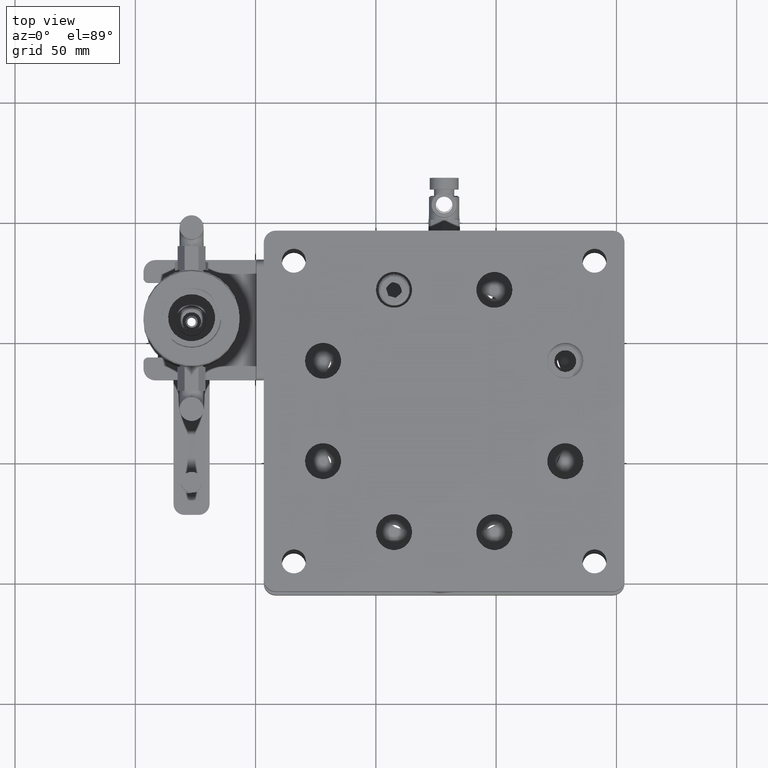
[diagram: clean part render]
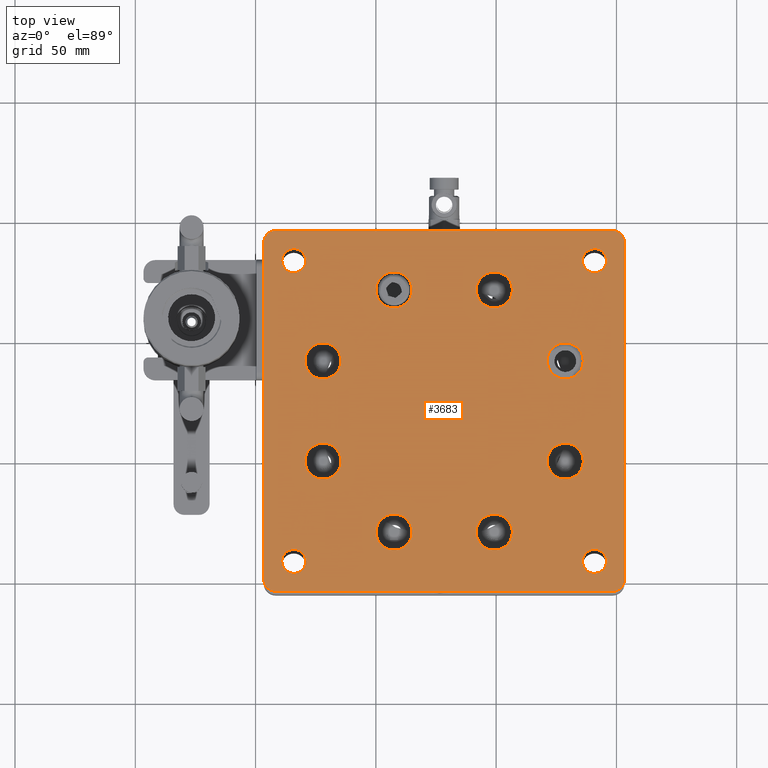
[diagram: same view with one face highlighted and labeled with its STEP entity id]
A machine part, top view. The second image highlights one B-rep face of the part: STEP entity #3683.
In plain terms, the highlighted planar face has unit normal (0, 0, -1).
Its self-contained STEP definition (entity closure, byte-faithful):
#113 = VERTEX_POINT ( 'NONE', #23197 ) ;
#197 = DIRECTION ( 'NONE',  ( -1.000000000000000000, 0.000000000000000000, 0.000000000000000000 ) ) ;
#361 = EDGE_CURVE ( 'NONE', #12312, #12312, #18788, .T. ) ;
#459 = CIRCLE ( 'NONE', #15228, 5.000000000000004441 ) ;
#482 = ORIENTED_EDGE ( 'NONE', *, *, #361, .F. ) ;
#629 = CIRCLE ( 'NONE', #22987, 4.999999999999990230 ) ;
#635 = ORIENTED_EDGE ( 'NONE', *, *, #11353, .T. ) ;
#745 = CARTESIAN_POINT ( 'NONE',  ( 78.03016682690058303, -50.78789894676080507, 219.9977288244028273 ) ) ;
#880 = DIRECTION ( 'NONE',  ( 0.000000000000000000, 0.000000000000000000, 1.000000000000000000 ) ) ;
#1479 = VERTEX_POINT ( 'NONE', #2098 ) ;
#1802 = VERTEX_POINT ( 'NONE', #15688 ) ;
#1863 = DIRECTION ( 'NONE',  ( 1.000000000000000000, 0.000000000000000000, 0.000000000000000000 ) ) ;
#2030 = EDGE_LOOP ( 'NONE', ( #482 ) ) ;
#2049 = CARTESIAN_POINT ( 'NONE',  ( 149.2378484126631406, -80.28308640472849333, 219.9977288244028273 ) ) ;
#2098 = CARTESIAN_POINT ( 'NONE',  ( 203.3816013487657131, -99.93165188286336331, 219.9977288244028273 ) ) ;
#2193 = CARTESIAN_POINT ( 'NONE',  ( 195.8816013487657131, 32.56834811713661537, 219.9977288244028273 ) ) ;
#2415 = AXIS2_PLACEMENT_3D ( 'NONE', #5605, #13429, #21471 ) ;
#2477 = CIRCLE ( 'NONE', #16831, 7.499999999999992895 ) ;
#2520 = CARTESIAN_POINT ( 'NONE',  ( 78.03016682690055461, -9.075404818966022802, 219.9977288244028273 ) ) ;
#2558 = CIRCLE ( 'NONE', #23638, 5.000000000000004441 ) ;
#2650 = CIRCLE ( 'NONE', #17442, 5.000000000000004441 ) ;
#2844 = FACE_BOUND ( 'NONE', #20731, .T. ) ;
#2846 = DIRECTION ( 'NONE',  ( 1.000000000000000000, 0.000000000000000000, 0.000000000000000000 ) ) ;
#2897 = CARTESIAN_POINT ( 'NONE',  ( 186.2330358706308289, -50.78789894676072691, 219.9977288244028273 ) ) ;
#3115 = CARTESIAN_POINT ( 'NONE',  ( 190.8816013487656846, 32.56834811713661537, 219.9977288244028273 ) ) ;
#3119 = CARTESIAN_POINT ( 'NONE',  ( 58.38160134876569884, -104.9316518828633491, 219.9977288244028273 ) ) ;
#3161 = CARTESIAN_POINT ( 'NONE',  ( 65.88160134876569884, -92.43165188286337752, 219.9977288244028273 ) ) ;
#3223 = CARTESIAN_POINT ( 'NONE',  ( 115.0253542848682571, 20.41978263900173829, 219.9977288244028273 ) ) ;
#3585 = ORIENTED_EDGE ( 'NONE', *, *, #11770, .F. ) ;
#3683 = ADVANCED_FACE ( 'NONE', ( #4308, #18844, #24771, #6288, #16607, #22540, #14889, #12386, #22671, #12906, #2844, #20436, #10669 ), #16474, .F. ) ;
#4031 = CARTESIAN_POINT ( 'NONE',  ( 198.3816013487657131, 45.06834811713662958, 219.9977288244028273 ) ) ;
#4198 = EDGE_LOOP ( 'NONE', ( #5301 ) ) ;
#4308 = FACE_OUTER_BOUND ( 'NONE', #18425, .T. ) ;
#4433 = VERTEX_POINT ( 'NONE', #15959 ) ;
#4490 = CARTESIAN_POINT ( 'NONE',  ( 186.2330358706308004, -9.075404818965958853, 219.9977288244028273 ) ) ;
#4567 = DIRECTION ( 'NONE',  ( 0.000000000000000000, 0.000000000000000000, -1.000000000000000000 ) ) ;
#4635 = DIRECTION ( 'NONE',  ( 1.000000000000000000, 0.000000000000000000, 0.000000000000000000 ) ) ;
#4672 = DIRECTION ( 'NONE',  ( 0.000000000000000000, 0.000000000000000000, 1.000000000000000000 ) ) ;
#4673 = CARTESIAN_POINT ( 'NONE',  ( 190.8816013487656846, -92.43165188286337752, 219.9977288244028273 ) ) ;
#4676 = DIRECTION ( 'NONE',  ( 1.000000000000000000, 0.000000000000000000, 0.000000000000000000 ) ) ;
#4770 = DIRECTION ( 'NONE',  ( 0.000000000000000000, 0.000000000000000000, -1.000000000000000000 ) ) ;
#4879 = EDGE_CURVE ( 'NONE', #16789, #16789, #19318, .T. ) ;
#4986 = DIRECTION ( 'NONE',  ( 1.000000000000000000, 0.000000000000000000, 0.000000000000000000 ) ) ;
#5001 = CIRCLE ( 'NONE', #8399, 7.499999999999992895 ) ;
#5075 = VERTEX_POINT ( 'NONE', #11052 ) ;
#5082 = DIRECTION ( 'NONE',  ( 0.000000000000000000, 0.000000000000000000, 1.000000000000000000 ) ) ;
#5301 = ORIENTED_EDGE ( 'NONE', *, *, #5799, .F. ) ;
#5374 = LINE ( 'NONE', #11486, #23592 ) ;
#5605 = CARTESIAN_POINT ( 'NONE',  ( 178.7330358706308289, -50.78789894676072691, 219.9977288244028273 ) ) ;
#5719 = CARTESIAN_POINT ( 'NONE',  ( 85.53016682690059724, -50.78789894676080507, 219.9977288244028273 ) ) ;
#5737 = DIRECTION ( 'NONE',  ( 0.000000000000000000, 0.000000000000000000, -1.000000000000000000 ) ) ;
#5799 = EDGE_CURVE ( 'NONE', #22595, #22595, #20280, .T. ) ;
#5927 = EDGE_CURVE ( 'NONE', #1479, #10734, #19001, .T. ) ;
#6082 = CARTESIAN_POINT ( 'NONE',  ( 198.3816013487657415, -99.93165188286336331, 219.9977288244028273 ) ) ;
#6288 = FACE_BOUND ( 'NONE', #17460, .T. ) ;
#6344 = ORIENTED_EDGE ( 'NONE', *, *, #16267, .T. ) ;
#6615 = DIRECTION ( 'NONE',  ( 0.000000000000000000, 0.000000000000000000, -1.000000000000000000 ) ) ;
#6985 = EDGE_CURVE ( 'NONE', #23855, #23855, #629, .T. ) ;
#7014 = DIRECTION ( 'NONE',  ( -1.000000000000000000, 0.000000000000000000, 0.000000000000000000 ) ) ;
#7369 = VERTEX_POINT ( 'NONE', #12041 ) ;
#7571 = EDGE_CURVE ( 'NONE', #1802, #1802, #9519, .T. ) ;
#7598 = VECTOR ( 'NONE', #9597, 1000.000000000000000 ) ;
#7714 = VERTEX_POINT ( 'NONE', #19494 ) ;
#8136 = DIRECTION ( 'NONE',  ( 0.000000000000000000, 0.000000000000000000, 1.000000000000000000 ) ) ;
#8277 = EDGE_CURVE ( 'NONE', #1479, #7369, #15319, .T. ) ;
#8369 = ORIENTED_EDGE ( 'NONE', *, *, #25129, .T. ) ;
#8399 = AXIS2_PLACEMENT_3D ( 'NONE', #20957, #5082, #2846 ) ;
#8527 = CARTESIAN_POINT ( 'NONE',  ( 149.2378484126630553, 20.41978263900176671, 219.9977288244028273 ) ) ;
#8918 = AXIS2_PLACEMENT_3D ( 'NONE', #23972, #20281, #197 ) ;
#9308 = AXIS2_PLACEMENT_3D ( 'NONE', #6082, #6615, #18257 ) ;
#9311 = ORIENTED_EDGE ( 'NONE', *, *, #18267, .T. ) ;
#9519 = CIRCLE ( 'NONE', #10725, 7.500000000000007105 ) ;
#9597 = DIRECTION ( 'NONE',  ( -0.000000000000000000, -1.000000000000000000, -0.000000000000000000 ) ) ;
#9770 = CIRCLE ( 'NONE', #25361, 7.500000000000007105 ) ;
#10404 = DIRECTION ( 'NONE',  ( -1.000000000000000000, 0.000000000000000000, -0.000000000000000000 ) ) ;
#10506 = VERTEX_POINT ( 'NONE', #3119 ) ;
#10649 = CARTESIAN_POINT ( 'NONE',  ( 107.5253542848682571, 20.41978263900173829, 219.9977288244028273 ) ) ;
#10669 = FACE_BOUND ( 'NONE', #14622, .T. ) ;
#10681 = DIRECTION ( 'NONE',  ( 1.000000000000000000, 0.000000000000000000, 0.000000000000000000 ) ) ;
#10686 = LINE ( 'NONE', #18602, #21137 ) ;
#10725 = AXIS2_PLACEMENT_3D ( 'NONE', #2049, #8136, #24111 ) ;
#10734 = VERTEX_POINT ( 'NONE', #22954 ) ;
#11052 = CARTESIAN_POINT ( 'NONE',  ( 115.0253542848683281, -80.28308640472852176, 219.9977288244028273 ) ) ;
#11117 = DIRECTION ( 'NONE',  ( 1.000000000000000000, 0.000000000000000000, 0.000000000000000000 ) ) ;
#11285 = EDGE_CURVE ( 'NONE', #22667, #22667, #15201, .T. ) ;
#11353 = EDGE_CURVE ( 'NONE', #4433, #21907, #17529, .T. ) ;
#11357 = DIRECTION ( 'NONE',  ( 0.000000000000000000, 1.000000000000000000, -0.000000000000000000 ) ) ;
#11486 = CARTESIAN_POINT ( 'NONE',  ( 53.38160134876569884, -104.9316518828633633, 219.9977288244028273 ) ) ;
#11495 = CIRCLE ( 'NONE', #21159, 7.500000000000007105 ) ;
#11740 = ORIENTED_EDGE ( 'NONE', *, *, #5927, .F. ) ;
#11770 = EDGE_CURVE ( 'NONE', #24352, #7369, #2558, .T. ) ;
#11952 = VERTEX_POINT ( 'NONE', #5719 ) ;
#11971 = CARTESIAN_POINT ( 'NONE',  ( 58.38160134876569884, 40.06834811713662248, 219.9977288244028273 ) ) ;
#12041 = CARTESIAN_POINT ( 'NONE',  ( 203.3816013487657131, 40.06834811713662248, 219.9977288244028273 ) ) ;
#12115 = VERTEX_POINT ( 'NONE', #20164 ) ;
#12312 = VERTEX_POINT ( 'NONE', #14158 ) ;
#12386 = FACE_BOUND ( 'NONE', #21455, .T. ) ;
#12760 = DIRECTION ( 'NONE',  ( -0.000000000000000000, -0.000000000000000000, -1.000000000000000000 ) ) ;
#12842 = DIRECTION ( 'NONE',  ( -0.000000000000000000, -0.000000000000000000, -1.000000000000000000 ) ) ;
#12870 = ORIENTED_EDGE ( 'NONE', *, *, #21350, .F. ) ;
#12874 = ORIENTED_EDGE ( 'NONE', *, *, #19825, .F. ) ;
#12906 = FACE_BOUND ( 'NONE', #20142, .T. ) ;
#12943 = DIRECTION ( 'NONE',  ( -0.000000000000000000, -0.000000000000000000, -1.000000000000000000 ) ) ;
#13070 = CARTESIAN_POINT ( 'NONE',  ( 65.88160134876569884, 32.56834811713661537, 219.9977288244028273 ) ) ;
#13429 = DIRECTION ( 'NONE',  ( 0.000000000000000000, 0.000000000000000000, 1.000000000000000000 ) ) ;
#13509 = DIRECTION ( 'NONE',  ( 0.000000000000000000, 0.000000000000000000, 1.000000000000000000 ) ) ;
#13564 = CIRCLE ( 'NONE', #8918, 4.999999999999997335 ) ;
#14158 = CARTESIAN_POINT ( 'NONE',  ( 85.53016682690056882, -9.075404818966022802, 219.9977288244028273 ) ) ;
#14622 = EDGE_LOOP ( 'NONE', ( #18454 ) ) ;
#14829 = CARTESIAN_POINT ( 'NONE',  ( 198.3816013487657415, 40.06834811713662248, 219.9977288244028273 ) ) ;
#14889 = FACE_BOUND ( 'NONE', #2030, .T. ) ;
#15151 = DIRECTION ( 'NONE',  ( -0.000000000000000000, -0.000000000000000000, -1.000000000000000000 ) ) ;
#15201 = CIRCLE ( 'NONE', #15608, 5.000000000000004441 ) ;
#15228 = AXIS2_PLACEMENT_3D ( 'NONE', #4673, #12760, #20802 ) ;
#15319 = LINE ( 'NONE', #17429, #23806 ) ;
#15343 = EDGE_LOOP ( 'NONE', ( #19853 ) ) ;
#15608 = AXIS2_PLACEMENT_3D ( 'NONE', #3115, #15151, #18985 ) ;
#15688 = CARTESIAN_POINT ( 'NONE',  ( 156.7378484126631406, -80.28308640472849333, 219.9977288244028273 ) ) ;
#15818 = CARTESIAN_POINT ( 'NONE',  ( 70.88160134876568463, -92.43165188286337752, 219.9977288244028273 ) ) ;
#15959 = CARTESIAN_POINT ( 'NONE',  ( 53.38160134876569884, 40.06834811713662248, 219.9977288244028273 ) ) ;
#16267 = EDGE_CURVE ( 'NONE', #12115, #12115, #2650, .T. ) ;
#16270 = AXIS2_PLACEMENT_3D ( 'NONE', #2520, #23236, #4635 ) ;
#16474 = PLANE ( 'NONE',  #23897 ) ;
#16607 = FACE_BOUND ( 'NONE', #15343, .T. ) ;
#16789 = VERTEX_POINT ( 'NONE', #2897 ) ;
#16831 = AXIS2_PLACEMENT_3D ( 'NONE', #10649, #4672, #24883 ) ;
#17045 = EDGE_CURVE ( 'NONE', #18840, #18840, #2477, .T. ) ;
#17429 = CARTESIAN_POINT ( 'NONE',  ( 203.3816013487657131, -104.9316518828633633, 219.9977288244028273 ) ) ;
#17442 = AXIS2_PLACEMENT_3D ( 'NONE', #13070, #12943, #4986 ) ;
#17460 = EDGE_LOOP ( 'NONE', ( #19618 ) ) ;
#17529 = LINE ( 'NONE', #19513, #7598 ) ;
#18158 = ORIENTED_EDGE ( 'NONE', *, *, #8277, .T. ) ;
#18257 = DIRECTION ( 'NONE',  ( -1.000000000000000000, 0.000000000000000000, 0.000000000000000000 ) ) ;
#18267 = EDGE_CURVE ( 'NONE', #10506, #10734, #5374, .T. ) ;
#18425 = EDGE_LOOP ( 'NONE', ( #3585, #8369, #24476, #635, #12870, #9311, #11740, #18158 ) ) ;
#18454 = ORIENTED_EDGE ( 'NONE', *, *, #11285, .T. ) ;
#18602 = CARTESIAN_POINT ( 'NONE',  ( 53.38160134876569884, 45.06834811713662958, 219.9977288244028273 ) ) ;
#18788 = CIRCLE ( 'NONE', #16270, 7.500000000000007105 ) ;
#18819 = ORIENTED_EDGE ( 'NONE', *, *, #21738, .T. ) ;
#18840 = VERTEX_POINT ( 'NONE', #3223 ) ;
#18844 = FACE_BOUND ( 'NONE', #20814, .T. ) ;
#18985 = DIRECTION ( 'NONE',  ( 1.000000000000000000, 0.000000000000000000, 0.000000000000000000 ) ) ;
#19001 = CIRCLE ( 'NONE', #9308, 5.000000000000004441 ) ;
#19318 = CIRCLE ( 'NONE', #2415, 7.500000000000007105 ) ;
#19476 = CARTESIAN_POINT ( 'NONE',  ( 53.38160134876569884, -99.93165188286336331, 219.9977288244028273 ) ) ;
#19493 = EDGE_LOOP ( 'NONE', ( #24710 ) ) ;
#19494 = CARTESIAN_POINT ( 'NONE',  ( 156.7378484126630553, 20.41978263900176671, 219.9977288244028273 ) ) ;
#19513 = CARTESIAN_POINT ( 'NONE',  ( 53.38160134876569884, -104.9316518828633633, 219.9977288244028273 ) ) ;
#19618 = ORIENTED_EDGE ( 'NONE', *, *, #4879, .F. ) ;
#19825 = EDGE_CURVE ( 'NONE', #5075, #5075, #5001, .T. ) ;
#19853 = ORIENTED_EDGE ( 'NONE', *, *, #24627, .F. ) ;
#19972 = CARTESIAN_POINT ( 'NONE',  ( 178.7330358706308004, -9.075404818965958853, 219.9977288244028273 ) ) ;
#20142 = EDGE_LOOP ( 'NONE', ( #6344 ) ) ;
#20164 = CARTESIAN_POINT ( 'NONE',  ( 70.88160134876569884, 32.56834811713661537, 219.9977288244028273 ) ) ;
#20280 = CIRCLE ( 'NONE', #25324, 7.500000000000007105 ) ;
#20281 = DIRECTION ( 'NONE',  ( 0.000000000000000000, 0.000000000000000000, -1.000000000000000000 ) ) ;
#20420 = DIRECTION ( 'NONE',  ( 0.000000000000000000, 0.000000000000000000, 1.000000000000000000 ) ) ;
#20436 = FACE_BOUND ( 'NONE', #20553, .T. ) ;
#20553 = EDGE_LOOP ( 'NONE', ( #18819 ) ) ;
#20563 = CARTESIAN_POINT ( 'NONE',  ( 128.3816013487656846, -29.93165188286338818, 219.9977288244028273 ) ) ;
#20731 = EDGE_LOOP ( 'NONE', ( #24610 ) ) ;
#20802 = DIRECTION ( 'NONE',  ( 1.000000000000000000, 0.000000000000000000, 0.000000000000000000 ) ) ;
#20814 = EDGE_LOOP ( 'NONE', ( #12874 ) ) ;
#20957 = CARTESIAN_POINT ( 'NONE',  ( 107.5253542848683423, -80.28308640472852176, 219.9977288244028273 ) ) ;
#21137 = VECTOR ( 'NONE', #26120, 1000.000000000000000 ) ;
#21159 = AXIS2_PLACEMENT_3D ( 'NONE', #745, #880, #10681 ) ;
#21350 = EDGE_CURVE ( 'NONE', #10506, #21907, #13564, .T. ) ;
#21455 = EDGE_LOOP ( 'NONE', ( #25190 ) ) ;
#21457 = EDGE_CURVE ( 'NONE', #4433, #113, #23658, .T. ) ;
#21471 = DIRECTION ( 'NONE',  ( 1.000000000000000000, 0.000000000000000000, 0.000000000000000000 ) ) ;
#21506 = DIRECTION ( 'NONE',  ( 1.000000000000000000, 0.000000000000000000, -0.000000000000000000 ) ) ;
#21738 = EDGE_CURVE ( 'NONE', #25160, #25160, #459, .T. ) ;
#21907 = VERTEX_POINT ( 'NONE', #19476 ) ;
#22393 = AXIS2_PLACEMENT_3D ( 'NONE', #11971, #5737, #25826 ) ;
#22540 = FACE_BOUND ( 'NONE', #19493, .T. ) ;
#22595 = VERTEX_POINT ( 'NONE', #4490 ) ;
#22667 = VERTEX_POINT ( 'NONE', #2193 ) ;
#22671 = FACE_BOUND ( 'NONE', #4198, .T. ) ;
#22954 = CARTESIAN_POINT ( 'NONE',  ( 198.3816013487657131, -104.9316518828633633, 219.9977288244028273 ) ) ;
#22987 = AXIS2_PLACEMENT_3D ( 'NONE', #3161, #12842, #11117 ) ;
#23047 = EDGE_LOOP ( 'NONE', ( #25472 ) ) ;
#23197 = CARTESIAN_POINT ( 'NONE',  ( 58.38160134876569884, 45.06834811713662958, 219.9977288244028273 ) ) ;
#23236 = DIRECTION ( 'NONE',  ( 0.000000000000000000, 0.000000000000000000, 1.000000000000000000 ) ) ;
#23592 = VECTOR ( 'NONE', #21506, 1000.000000000000000 ) ;
#23638 = AXIS2_PLACEMENT_3D ( 'NONE', #14829, #4770, #7014 ) ;
#23658 = CIRCLE ( 'NONE', #22393, 4.999999999999997335 ) ;
#23806 = VECTOR ( 'NONE', #11357, 1000.000000000000000 ) ;
#23855 = VERTEX_POINT ( 'NONE', #15818 ) ;
#23897 = AXIS2_PLACEMENT_3D ( 'NONE', #20563, #4567, #10404 ) ;
#23972 = CARTESIAN_POINT ( 'NONE',  ( 58.38160134876569884, -99.93165188286336331, 219.9977288244028273 ) ) ;
#24111 = DIRECTION ( 'NONE',  ( 1.000000000000000000, 0.000000000000000000, 0.000000000000000000 ) ) ;
#24352 = VERTEX_POINT ( 'NONE', #4031 ) ;
#24476 = ORIENTED_EDGE ( 'NONE', *, *, #21457, .F. ) ;
#24610 = ORIENTED_EDGE ( 'NONE', *, *, #6985, .T. ) ;
#24627 = EDGE_CURVE ( 'NONE', #7714, #7714, #9770, .T. ) ;
#24710 = ORIENTED_EDGE ( 'NONE', *, *, #25518, .F. ) ;
#24771 = FACE_BOUND ( 'NONE', #23047, .T. ) ;
#24883 = DIRECTION ( 'NONE',  ( 1.000000000000000000, 0.000000000000000000, 0.000000000000000000 ) ) ;
#25129 = EDGE_CURVE ( 'NONE', #24352, #113, #10686, .T. ) ;
#25160 = VERTEX_POINT ( 'NONE', #25425 ) ;
#25190 = ORIENTED_EDGE ( 'NONE', *, *, #17045, .F. ) ;
#25324 = AXIS2_PLACEMENT_3D ( 'NONE', #19972, #13509, #1863 ) ;
#25361 = AXIS2_PLACEMENT_3D ( 'NONE', #8527, #20420, #4676 ) ;
#25425 = CARTESIAN_POINT ( 'NONE',  ( 195.8816013487657131, -92.43165188286337752, 219.9977288244028273 ) ) ;
#25472 = ORIENTED_EDGE ( 'NONE', *, *, #7571, .F. ) ;
#25518 = EDGE_CURVE ( 'NONE', #11952, #11952, #11495, .T. ) ;
#25826 = DIRECTION ( 'NONE',  ( -1.000000000000000000, 0.000000000000000000, 0.000000000000000000 ) ) ;
#26120 = DIRECTION ( 'NONE',  ( -1.000000000000000000, -0.000000000000000000, -0.000000000000000000 ) ) ;